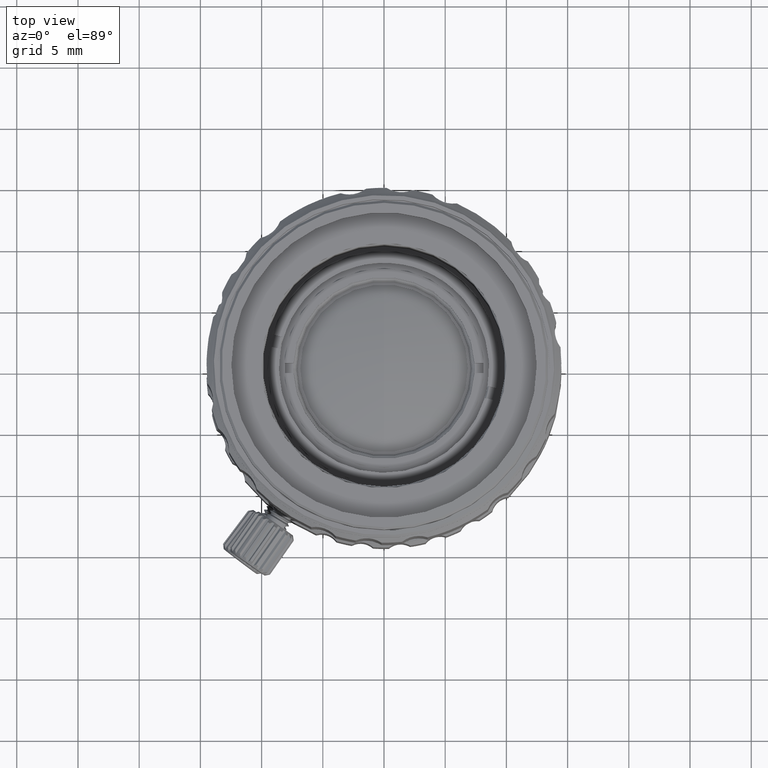
[diagram: clean part render]
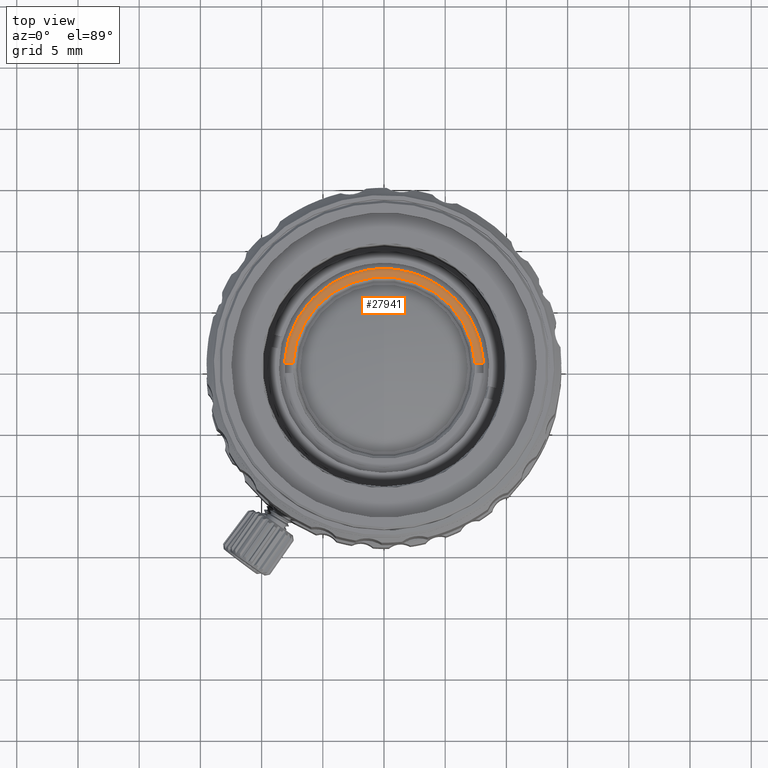
[diagram: same view with one face highlighted and labeled with its STEP entity id]
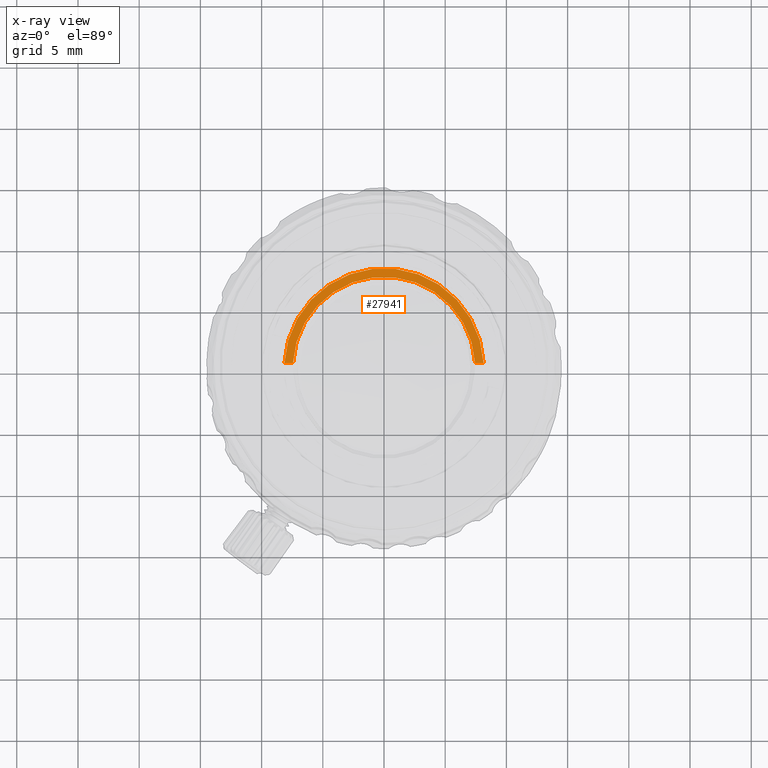
[diagram: x-ray of the same camera — body ghosted, the highlighted face saturated]
A machine part, top view. The second image highlights one B-rep face of the part: STEP entity #27941.
The next image is the same camera in x-ray: the body ghosted, the highlighted face saturated — about 0% of this face is hidden behind the body in this view.
In plain terms, the highlighted planar face has unit normal (0, 0, 1).
Its self-contained STEP definition (entity closure, byte-faithful):
#123 = VERTEX_POINT ( 'NONE', #34797 ) ;
#1030 = CARTESIAN_POINT ( 'NONE',  ( 7.439254268378999946, 0.4000000000000000222, 14.06600000000000072 ) ) ;
#1892 = VERTEX_POINT ( 'NONE', #44342 ) ;
#2346 = EDGE_CURVE ( 'NONE', #52867, #1892, #39124, .T. ) ;
#2387 = CARTESIAN_POINT ( 'NONE',  ( -8.140178404184998939, 0.4000000000000000222, 14.06600000000000072 ) ) ;
#4681 = DIRECTION ( 'NONE',  ( 0.9985575833081579145, 0.05369127319938769155, 0.000000000000000000 ) ) ;
#6774 = VECTOR ( 'NONE', #54526, 1000.000000000000000 ) ;
#8995 = DIRECTION ( 'NONE',  ( 0.000000000000000000, 0.000000000000000000, 1.000000000000000000 ) ) ;
#12094 = DIRECTION ( 'NONE',  ( 0.000000000000000000, 0.000000000000000000, -1.000000000000000000 ) ) ;
#14226 = ORIENTED_EDGE ( 'NONE', *, *, #20558, .F. ) ;
#16545 = AXIS2_PLACEMENT_3D ( 'NONE', #60113, #12094, #59798 ) ;
#18034 = DIRECTION ( 'NONE',  ( 1.000000000000000000, 0.000000000000000000, 0.000000000000000000 ) ) ;
#20558 = EDGE_CURVE ( 'NONE', #52867, #28724, #60766, .T. ) ;
#21692 = CARTESIAN_POINT ( 'NONE',  ( 8.140178404184998939, 0.4000000000000000222, 14.06600000000000072 ) ) ;
#22866 = CARTESIAN_POINT ( 'NONE',  ( 0.000000000000000000, 8.150000273127000483, 14.06600000000000072 ) ) ;
#23495 = PLANE ( 'NONE',  #42551 ) ;
#24768 = EDGE_LOOP ( 'NONE', ( #47724, #51288, #14226, #49375 ) ) ;
#24873 = LINE ( 'NONE', #1030, #6774 ) ;
#26234 = EDGE_CURVE ( 'NONE', #123, #28724, #24873, .T. ) ;
#27941 = ADVANCED_FACE ( 'NONE', ( #47337 ), #23495, .T. ) ;
#28724 = VERTEX_POINT ( 'NONE', #21692 ) ;
#29794 = DIRECTION ( 'NONE',  ( 1.000000000000000000, 0.000000000000000000, 0.000000000000000000 ) ) ;
#31349 = VECTOR ( 'NONE', #29794, 1000.000000000000000 ) ;
#33332 = CARTESIAN_POINT ( 'NONE',  ( -8.140178404184998939, 0.4000000000000000222, 14.06600000000000072 ) ) ;
#34316 = CARTESIAN_POINT ( 'NONE',  ( 0.000000000000000000, 0.000000000000000000, 14.06600000000000072 ) ) ;
#34797 = CARTESIAN_POINT ( 'NONE',  ( 7.439254268378999946, 0.4000000000000000222, 14.06600000000000072 ) ) ;
#39124 = LINE ( 'NONE', #33332, #31349 ) ;
#42551 = AXIS2_PLACEMENT_3D ( 'NONE', #22866, #8995, #18034 ) ;
#44342 = CARTESIAN_POINT ( 'NONE',  ( -7.439254268378999946, 0.4000000000000000222, 14.06600000000000072 ) ) ;
#47337 = FACE_OUTER_BOUND ( 'NONE', #24768, .T. ) ;
#47724 = ORIENTED_EDGE ( 'NONE', *, *, #47999, .F. ) ;
#47999 = EDGE_CURVE ( 'NONE', #123, #1892, #48902, .T. ) ;
#48795 = DIRECTION ( 'NONE',  ( 0.000000000000000000, 0.000000000000000000, 1.000000000000000000 ) ) ;
#48902 = CIRCLE ( 'NONE', #59234, 7.450000273127001194 ) ;
#49375 = ORIENTED_EDGE ( 'NONE', *, *, #2346, .T. ) ;
#51288 = ORIENTED_EDGE ( 'NONE', *, *, #26234, .T. ) ;
#52867 = VERTEX_POINT ( 'NONE', #2387 ) ;
#54526 = DIRECTION ( 'NONE',  ( 1.000000000000000000, 0.000000000000000000, 0.000000000000000000 ) ) ;
#59234 = AXIS2_PLACEMENT_3D ( 'NONE', #34316, #48795, #4681 ) ;
#59798 = DIRECTION ( 'NONE',  ( -0.9987948627469680485, 0.04907975295643839803, 0.000000000000000000 ) ) ;
#60113 = CARTESIAN_POINT ( 'NONE',  ( 0.000000000000000000, 0.000000000000000000, 14.06600000000000072 ) ) ;
#60766 = CIRCLE ( 'NONE', #16545, 8.150000273127002259 ) ;